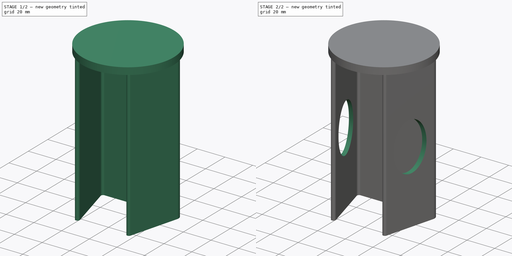
[diagram: build sequence overview — one tinted view per stage of 2, left to right]
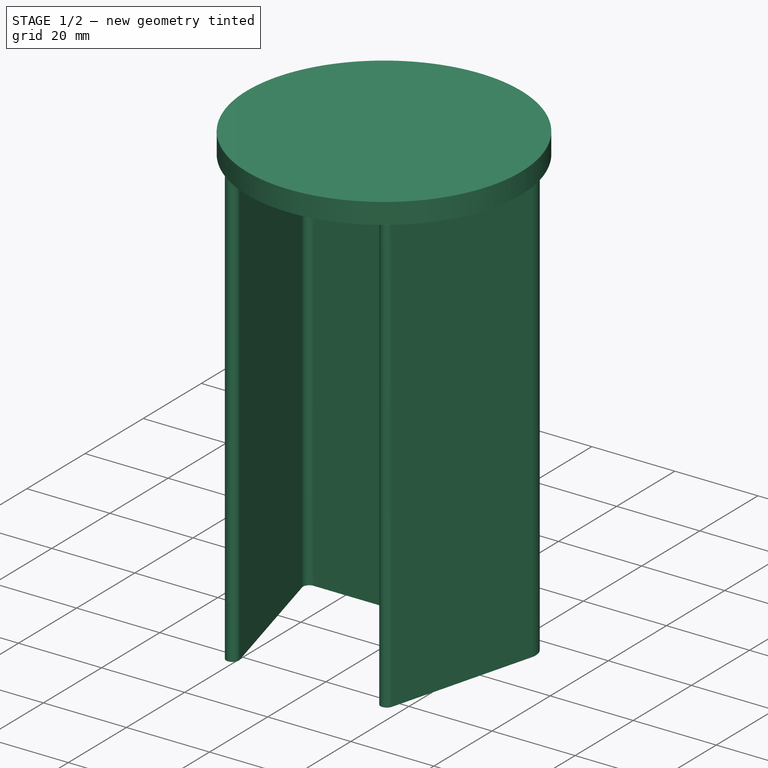
[diagram: stage 1 of 2 — iso view after this stage's code; geometry added in this stage tinted green]
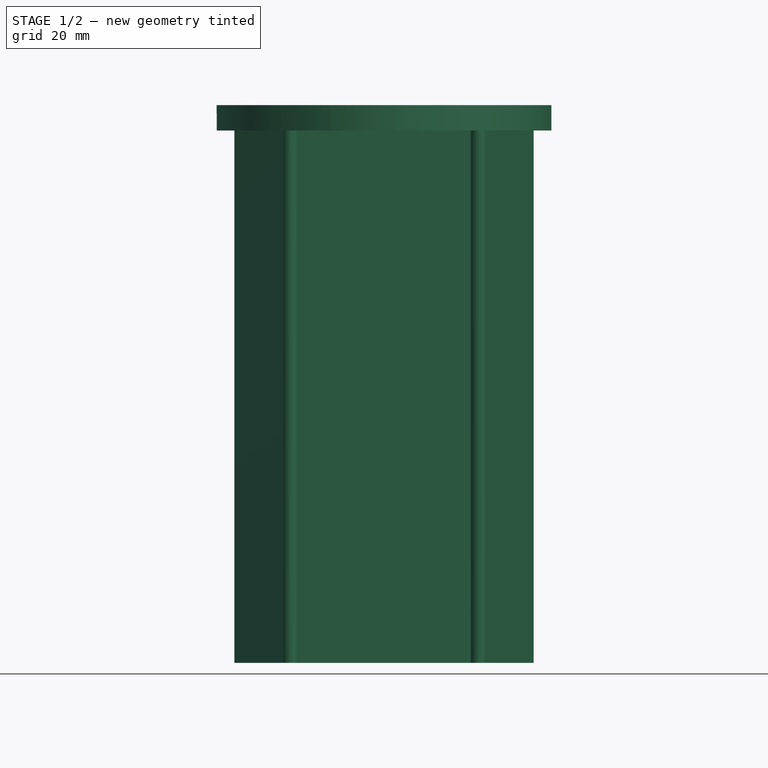
[diagram: stage 1 of 2 — front view after this stage's code; geometry added in this stage tinted green]
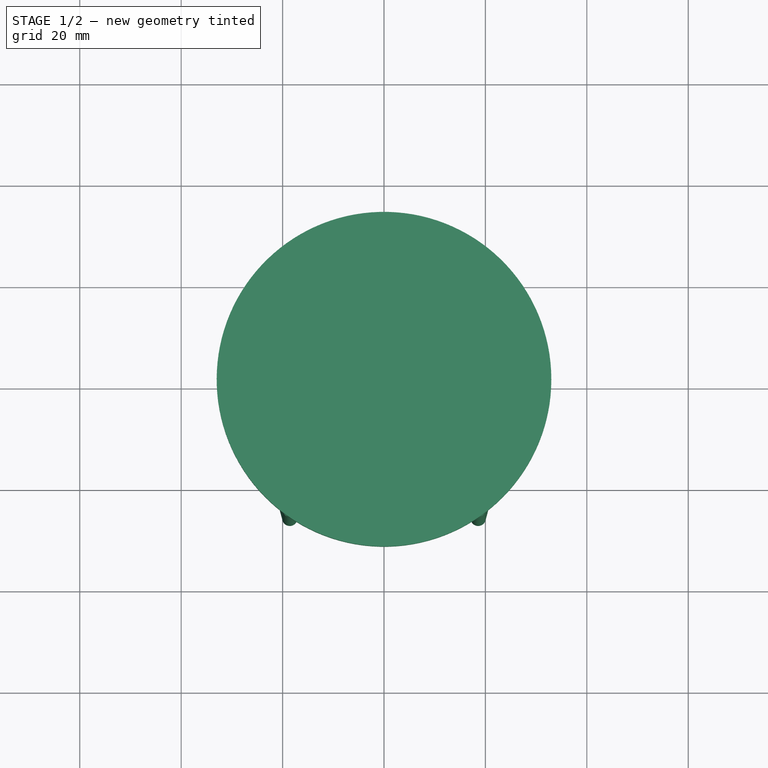
[diagram: stage 1 of 2 — top view after this stage's code; geometry added in this stage tinted green]
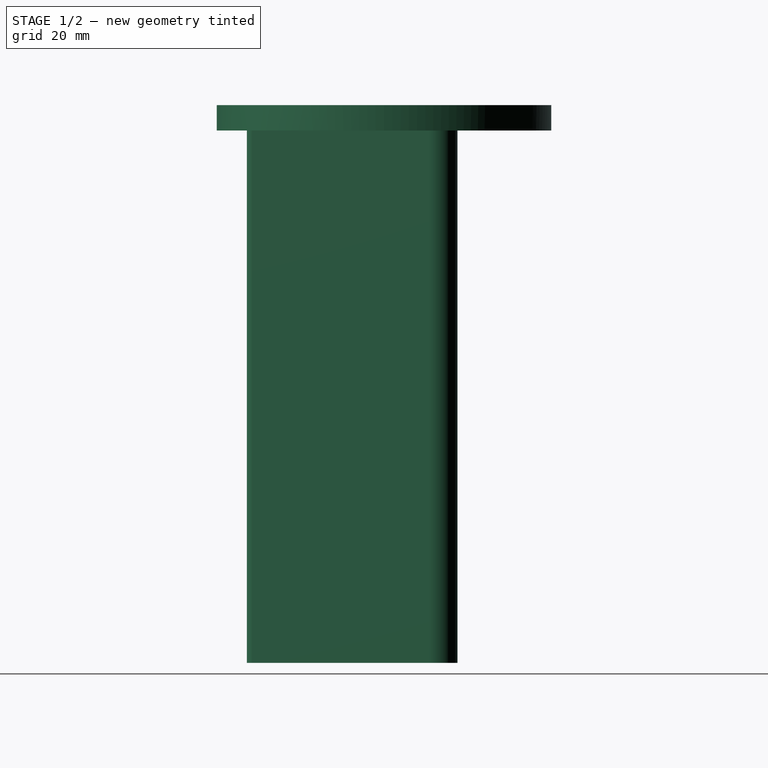
[diagram: stage 1 of 2 — right view after this stage's code; geometry added in this stage tinted green]
FCSTD DOCUMENT  (FreeCAD 0.19R24276 (Git))
Label: Corte_piezas
License: Creative Commons Attribution-ShareAlike
LicenseURL: http://creativecommons.org/licenses/by-sa/4.0/
objects: Sketcher::SketchObject×3, PartDesign::Pad×2, Part::Offset2D×1, Spreadsheet::Sheet×1, PartDesign::FeatureBase×1, PartDesign::Plane×1, PartDesign::Pocket×1, PartDesign::Body×1
note: 13 computed .brp shape members not serialized (recipe doc carries the construction recipe); baked Part::Feature solids carry a one-line shape summary decoded from their .brp

FEATURE [Sketcher::SketchObject] Sketch  label="Armazon"
  FullyConstrained = true
  expr: Constraints[10] = <<Datos>>.anguloCentral
  sketch-geometry (8):
    g0: Circle CenterX=0 CenterY=0 CenterZ=0 NormalX=0 NormalY=0 NormalZ=1 AngleXU=0 Radius=33
    g1: Circle CenterX=0 CenterY=0 CenterZ=0 NormalX=0 NormalY=0 NormalZ=1 AngleXU=0 Radius=13
    g2: LineSegment StartX=0 StartY=13 StartZ=0 EndX=0 EndY=33 EndZ=0
    g3: LineSegment StartX=-25 StartY=13 StartZ=0 EndX=25 EndY=13 EndZ=0
    g4: LineSegment StartX=27.8978 StartY=9.22354 StartZ=0 EndX=18.5803 EndY=-25.5498 EndZ=0
    g5: LineSegment StartX=-27.8978 StartY=9.22354 StartZ=0 EndX=-18.5803 EndY=-25.5498 EndZ=0
    g6: ArcOfCircle CenterX=25 CenterY=10 CenterZ=0 NormalX=0 NormalY=0 NormalZ=1 AngleXU=0 Radius=3 StartAngle=6.02139 EndAngle=7.85398
    g7: ArcOfCircle CenterX=-25 CenterY=10 CenterZ=0 NormalX=0 NormalY=0 NormalZ=1 AngleXU=0 Radius=3 StartAngle=1.5708 EndAngle=3.40339
  constraints (20):
    c: Coincident(g0,g-1)
    c: Diameter(g0) = 66  'Diámetro exterior'
    c: Coincident(g1,g0)
    c: PointOnObject(g2,g0)
    c: PointOnObject(g2,g-2)
    c: PointOnObject(g2,g1)
    c: PointOnObject(g2,g-2)
    c: DistanceY(g2,g2) = 20
    c: PointOnObject(g2,g3)
    c: Symmetric(g5,g4,g-2)
    c: Angle(g5,g3) = 1.309
    c: Tangent(g3,g6) = 1.5708
    c: Tangent(g4,g6) = 1.5708
    c: Tangent(g3,g7) = 1.5708
    c: Tangent(g5,g7) = -1.5708
    c: Equal(g7,g6)
    c: Symmetric(g3,g3,g2)
    c: DistanceX(g3,g3) = 50
    c: Distance(g4) = 36
    c: Radius(g6) = 3
FEATURE [Part::Offset2D] Offset2D  label="Relleno"
  Fill = true
  Intersection = false
  Join = 0
  Mode = 1
  SelfIntersection = false
  Source = -> Sketch
  Value = 1.5
FEATURE [Spreadsheet::Sheet] Spreadsheet  label="Datos"
  cells = A1=Altura; B1(alturaObjeto)=105; A2=Apertura figura central; B2(anguloCentral)=75; C2=Menor que 75; A3=Ancho tapa; B3(grosorTapa)==(115 - B1) / 2; A4=Separacion1; B4(separacion1)=5; A5=Tolerancia; B5(tolerancia)=1
FEATURE [PartDesign::FeatureBase] BaseFeature  label="copiaRelleno"
  BaseFeature = -> Offset2D
FEATURE [PartDesign::Pad] Pad  label="Cuerpo_principal"
  BaseFeature = -> BaseFeature
  Direction = (1,1,1)
  Length = 105
  Length2 = 100
  Profile = -> BaseFeature
  Type = 0
  expr: Length = <<Datos>>.alturaObjeto
FEATURE [Sketcher::SketchObject] Sketch001  label="Base"
  FullyConstrained = true
  MapMode = 5
  Placement = pos=(0,0,105) rot=(0,0,1;0rad)
  Support = -> [Pad]
  sketch-geometry (1):
    g0: Circle CenterX=0 CenterY=0 CenterZ=0 NormalX=0 NormalY=0 NormalZ=1 AngleXU=0 Radius=33
  constraints (2):
    c: Coincident(g0,g-1)
    c: Diameter(g0) = 66
FEATURE [PartDesign::Pad] Pad001  label="Base001"
  BaseFeature = -> Pad
  Direction = (1,1,1)
  Length = 5
  Length2 = 100
  Profile = -> Sketch001
  Type = 0
  expr: Length = <<Datos>>.grosorTapa
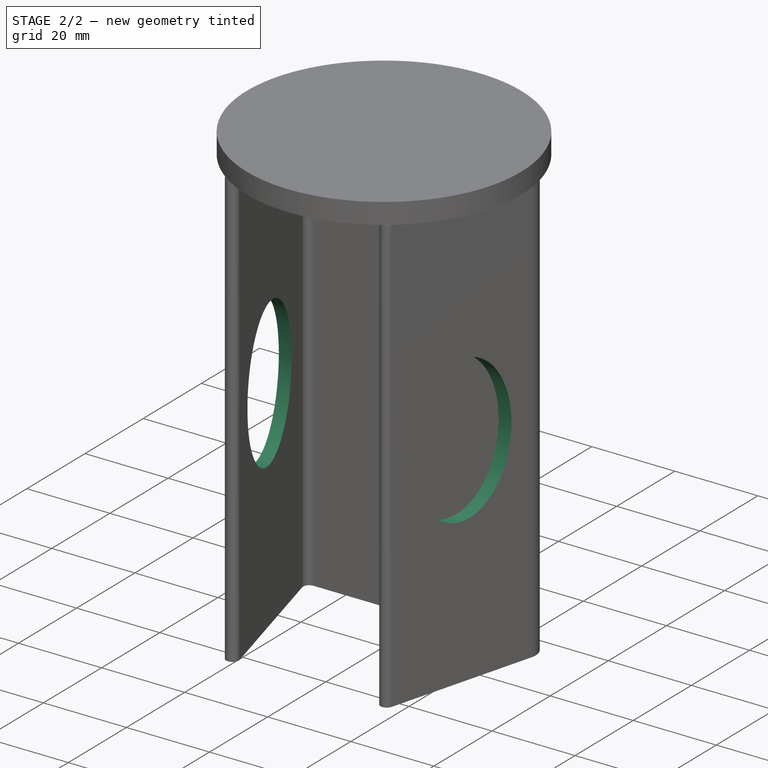
[diagram: stage 2 of 2 — iso view after this stage's code; geometry added in this stage tinted green]
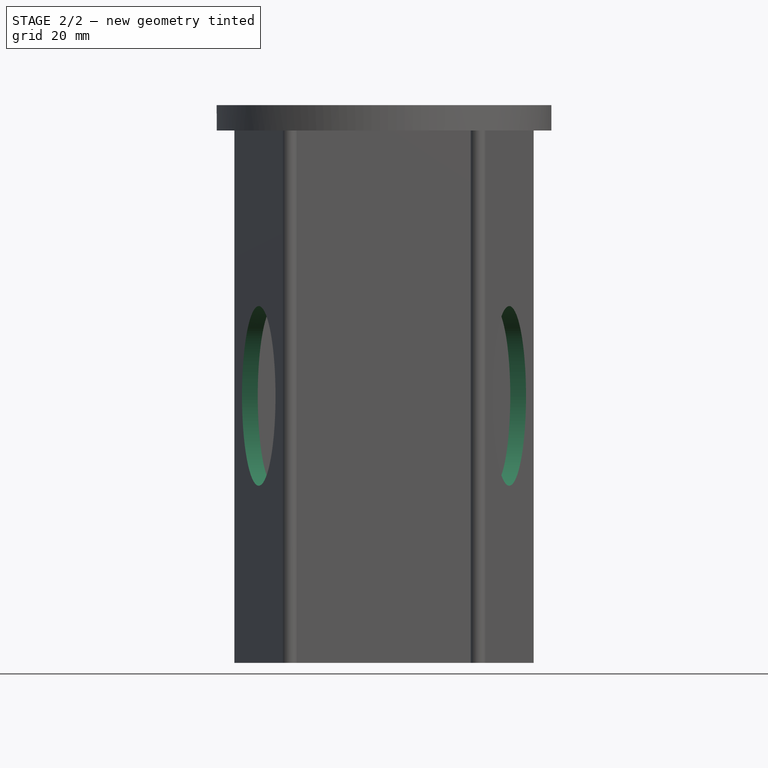
[diagram: stage 2 of 2 — front view after this stage's code; geometry added in this stage tinted green]
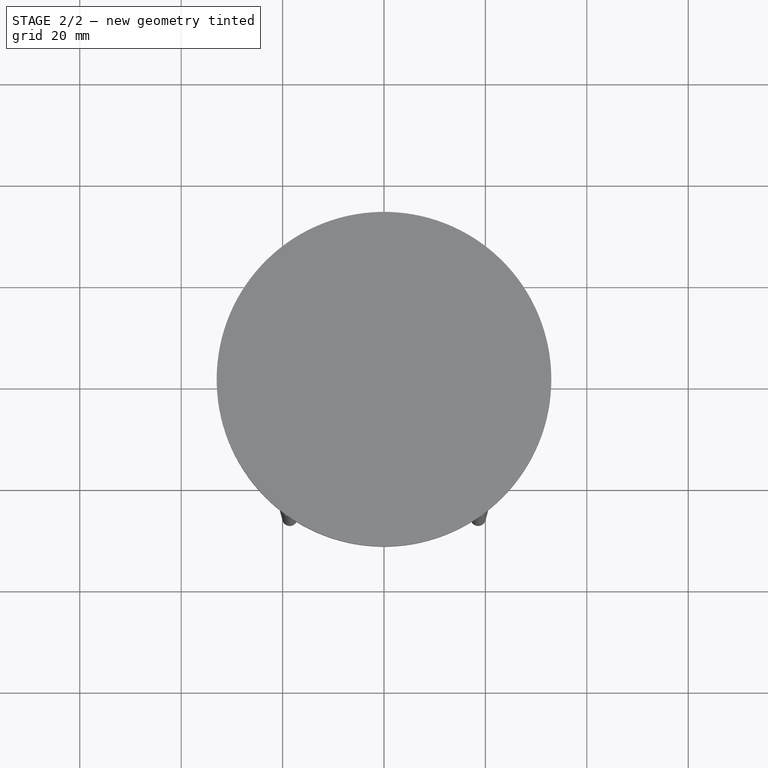
[diagram: stage 2 of 2 — top view after this stage's code; geometry added in this stage tinted green]
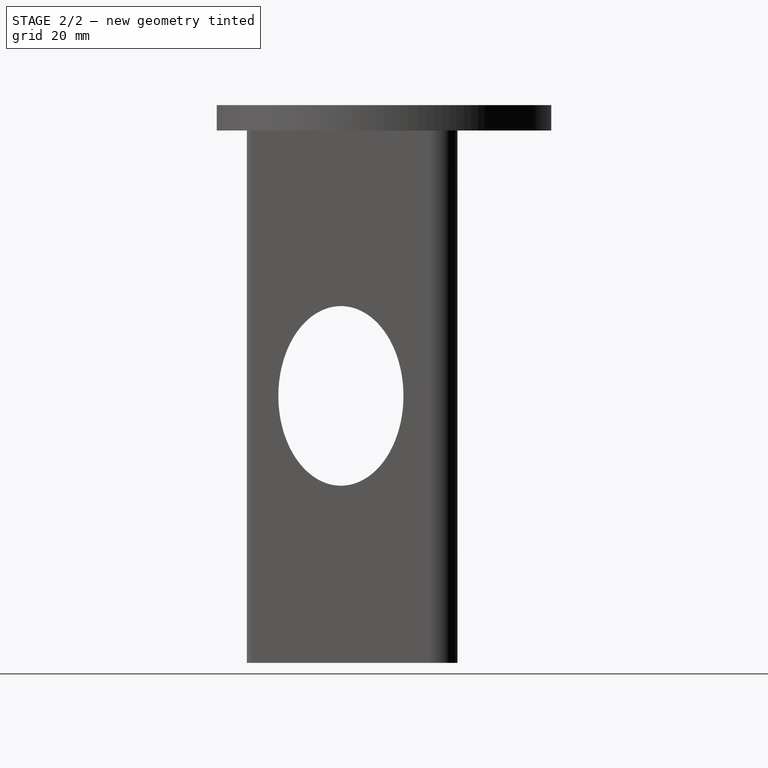
[diagram: stage 2 of 2 — right view after this stage's code; geometry added in this stage tinted green]
FEATURE [PartDesign::Plane] DatumPlane
  AttachmentOffset = pos=(0,0,20) rot=(0,1,0;1.5708rad)
  Length = 84.8232
  MapMode = 5
  Placement = pos=(0,-8.5,4.4e-15) rot=(0.57735,0.57735,0.57735;2.0944rad)
  ResizeMode = 0
  Support = -> [Pad001]
  Width = 153.872
FEATURE [Sketcher::SketchObject] Sketch002  label="Ventana"
  ExternalGeometry = -> [Pad001]
  FullyConstrained = true
  MapMode = 5
  Placement = pos=(0,-8.5,4.4e-15) rot=(0.57735,0.57735,0.57735;2.0944rad)
  Support = -> [DatumPlane]
  expr: Constraints[13] = <<Datos>>.separacion1
  expr: Constraints[4] = <<Datos>>.separacion1
  sketch-geometry (7):
    g0: LineSegment StartX=17.3353 StartY=105 StartZ=0 EndX=-17.438 EndY=-1.42e-14 EndZ=0
    g1: LineSegment StartX=12.3353 StartY=52.6551 StartZ=0 EndX=17.3353 EndY=52.6551 EndZ=0
    g2: Ellipse CenterX=0 CenterY=52.6551 CenterZ=0 NormalX=0 NormalY=0 NormalZ=1 MajorRadius=17.716 MinorRadius=12.3353 AngleXU=-1.5708
    g3: LineSegment StartX=2.3e-15 StartY=34.9391 StartZ=0 EndX=-2.3e-15 EndY=70.3711 EndZ=0
    g4: LineSegment StartX=12.3353 StartY=52.6551 StartZ=0 EndX=-12.3353 EndY=52.6551 EndZ=0
    g5: GeomPoint X=1.7e-15 Y=39.9391 Z=0
    g6: GeomPoint X=-1.7e-15 Y=65.3711 Z=0
  constraints (11):
    c: Coincident(g0,g-4)
    c: Coincident(g0,g-3)
    c: PointOnObject(g1,g-4)
    c: Horizontal(g1)
    c: DistanceX(g1,g1) = 5
    c: InternalAlignment(g3-g6 -> g2) x4
    c: PointOnObject(g2,g0)
    c: PointOnObject(g2,g-2)
    c: Coincident(g4,g1)
    c: Parallel(g4,g1)
    c: DistanceY(g6,g3) = 5
FEATURE [PartDesign::Pocket] Pocket  label="Ventana_Anemómetro"
  BaseFeature = -> Pad001
  Length = 5
  Length2 = 100
  Midplane = true
  Profile = -> Sketch002
  Type = 1
FEATURE [PartDesign::Body] Body  label="Pieza principal"
  BaseFeature = -> Offset2D
  Group = -> [BaseFeature,Pad,Sketch001,Pad001,DatumPlane,Sketch002,Pocket]
  Origin = -> Origin
  Tip = -> Pocket
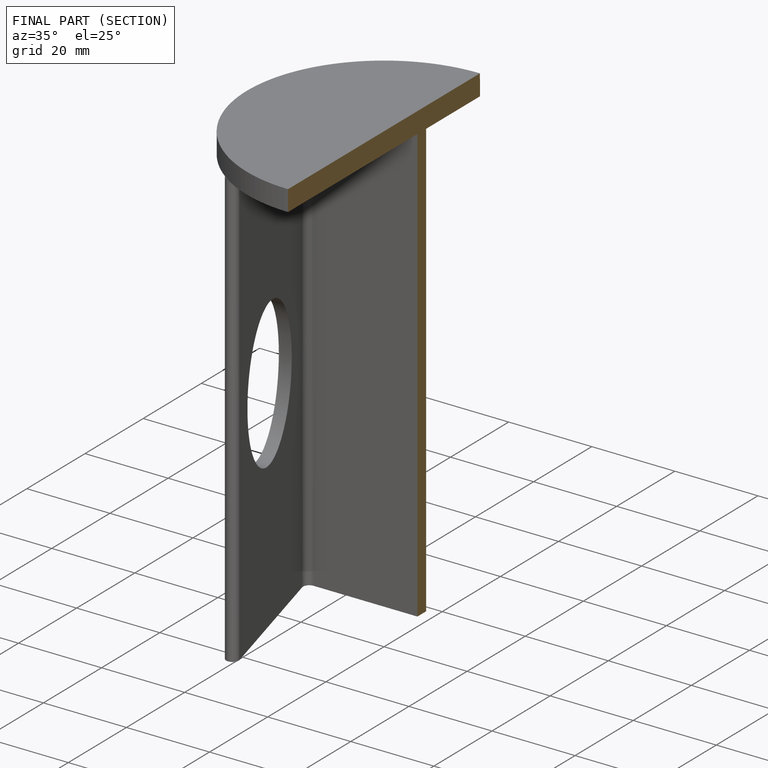
[diagram: finished part — half-section view (interior)]
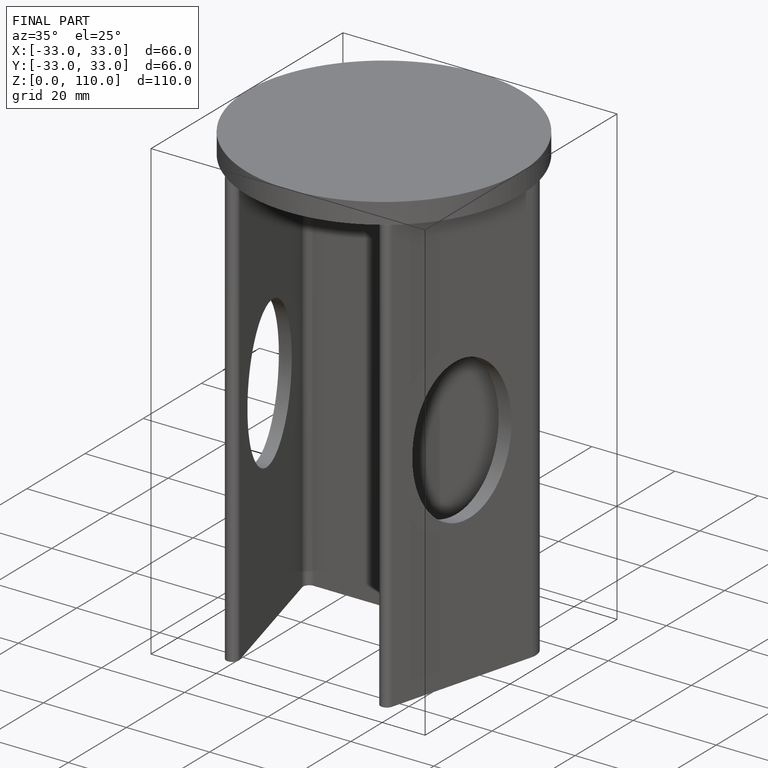
[diagram: finished part — iso view with bounding-box wireframe]
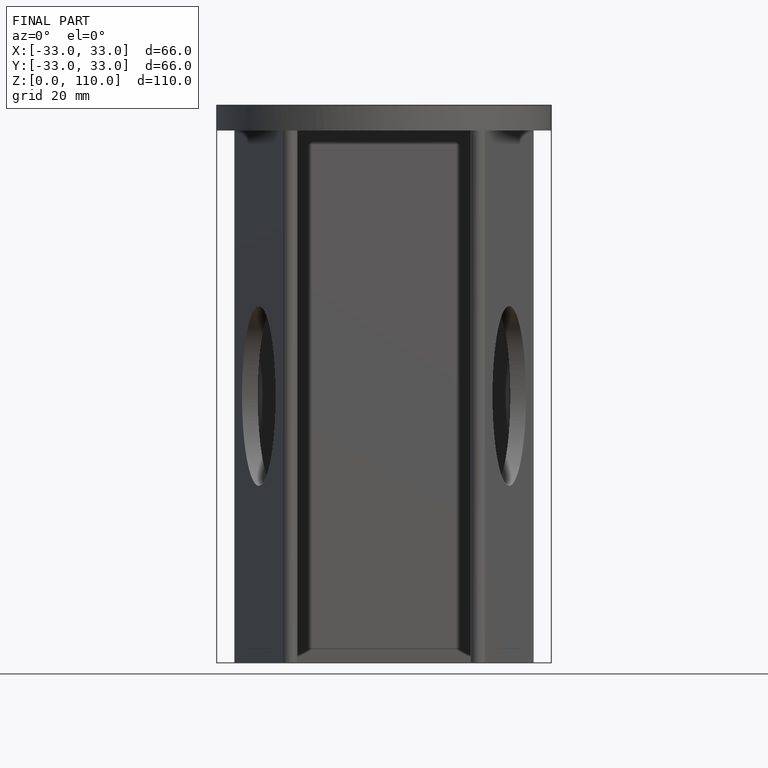
[diagram: finished part — front view with bounding-box wireframe]
